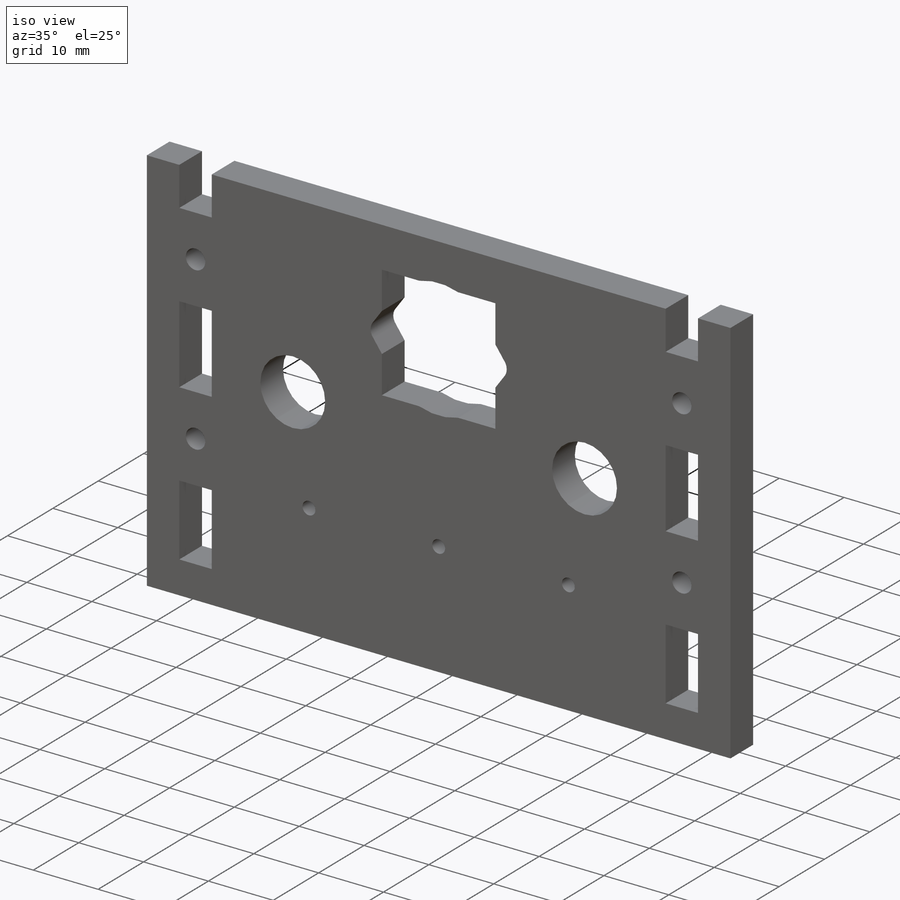
[diagram: iso view]
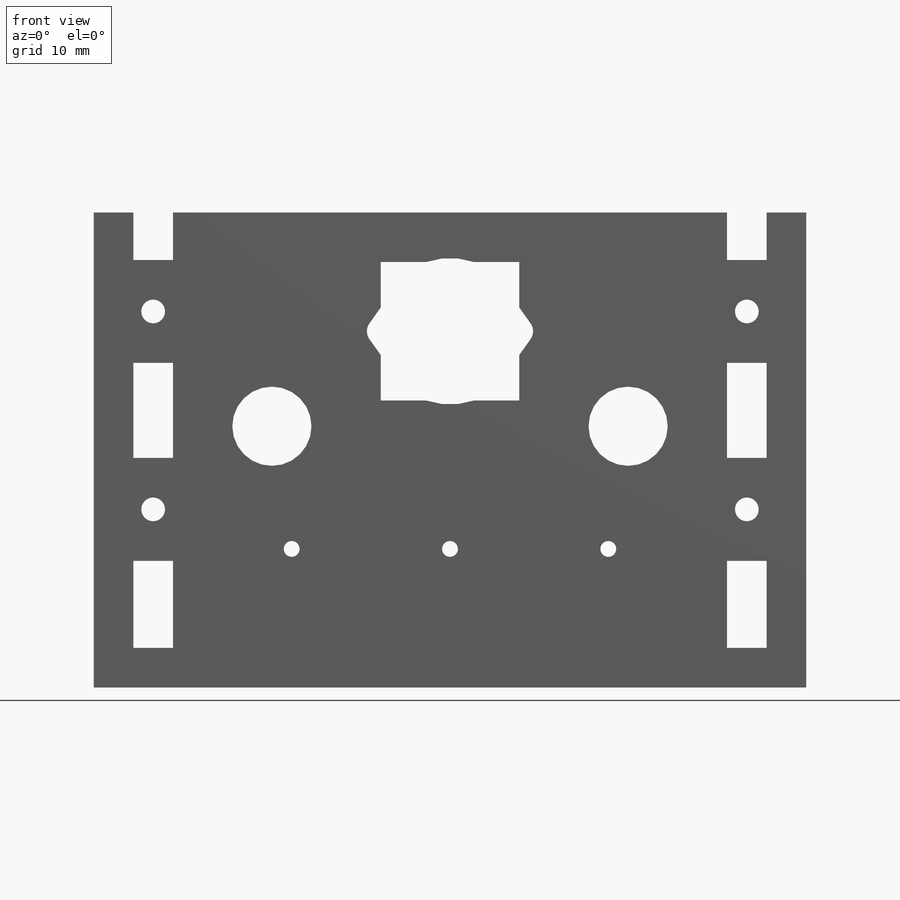
[diagram: front view]
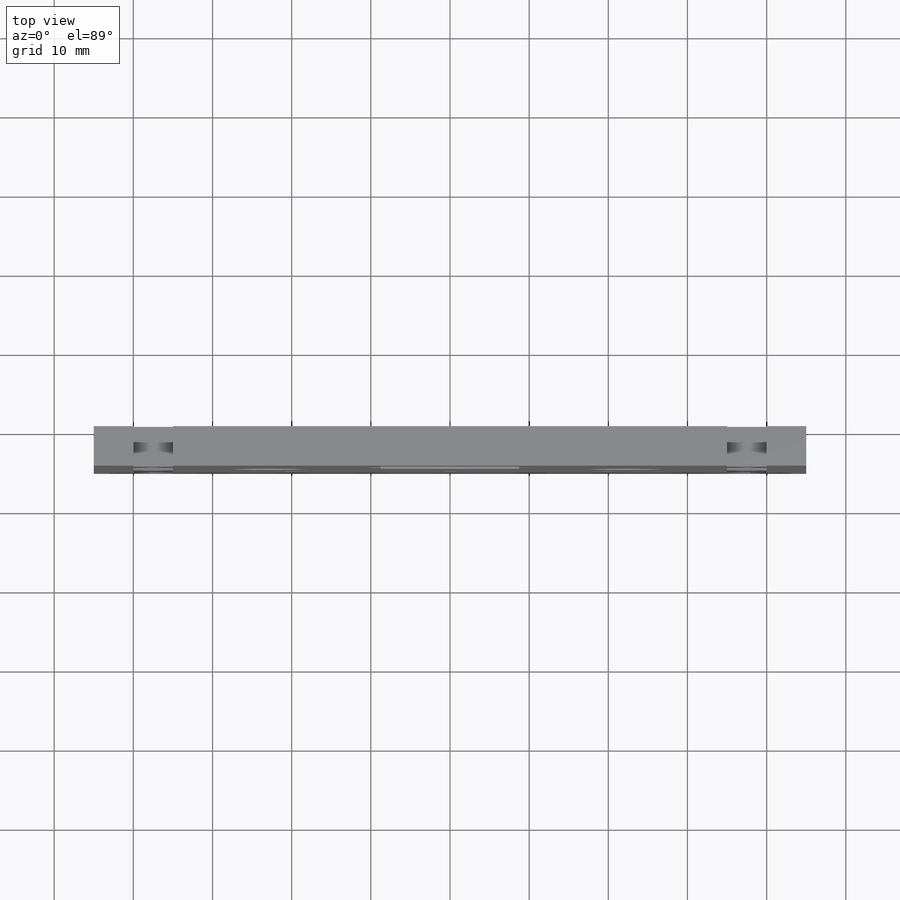
[diagram: top view]
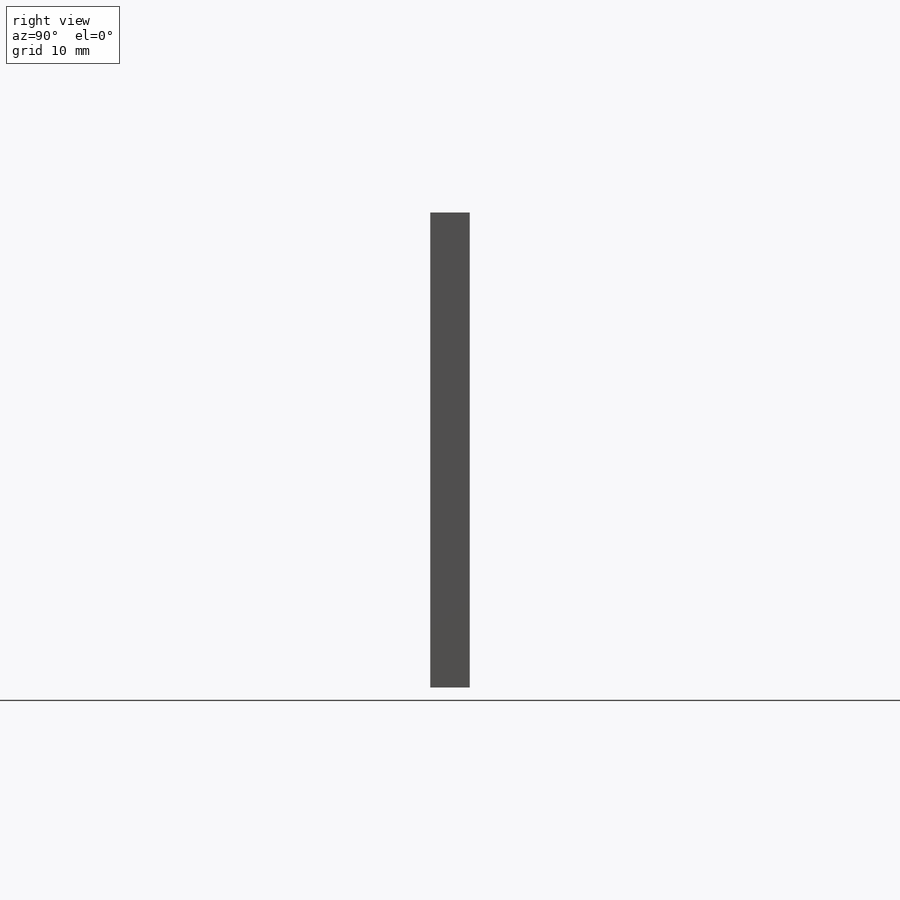
[diagram: right view]
SOLIDWORKS PART (.sldprt)
format: sldprt  version: not decoded by parser v0  size: 293,888 bytes
history: native  units: mm
features: sketch x6, cut_extrude x5, material x1, extrude x1, fillet x1, mirror x1 (+16 scaffold rows collapsed)
feature tree (31):
  scaffold x16  (default folders/planes/origin — collapsed)
  material  "Material <not specified>"
  sketch  "Sketch1"  dims[c1.D1=18.5mm c1.D2=17.0mm c1.D3=17.0mm c2.D1=60.0mm c2.D2=90.0mm]
  extrude  "Boss-Extrude1"  Depth=5mm
  sketch  "Sketch3"  dims[D1=18.5mm D2=15.0mm]
  cut_extrude  "Cut-Extrude2"  Depth=5mm
  sketch  "Sketch4"  dims[D1=17.5mm]
  cut_extrude  "Cut-Extrude3"  Depth=5mm
  sketch  "Sketch5"  dims[D1=3.5mm D2=17.5mm]
  cut_extrude  "Cut-Extrude4"  Depth=5mm
  sketch  "Sketch6"  dims[c1.D3=10.0mm c1.D6=2.0mm c1.D1=3.0mm c1.D2=45.0mm c2.D3=3.0mm c2.D4=15.5mm c2.D5=40.0mm c2.D1=12.0mm]
  cut_extrude  "Cut-Extrude5"  Depth=10mm
  fillet  "Fillet1"  Radius=10mm
  sketch  "Sketch7"  dims[D6=3.0mm D1=5.0mm D2=5.0mm D3=25.0mm D4=13.0mm D5=13.0mm D7=11.0mm D8=25.0mm]
  cut_extrude  "Cut-Extrude6"  Depth=5mm
  mirror  "Mirror1"
decode coverage: 13 of 14 modeling features carry decoded parameters
note: suppression state not decoded; provenance and decode notes live in map.json
